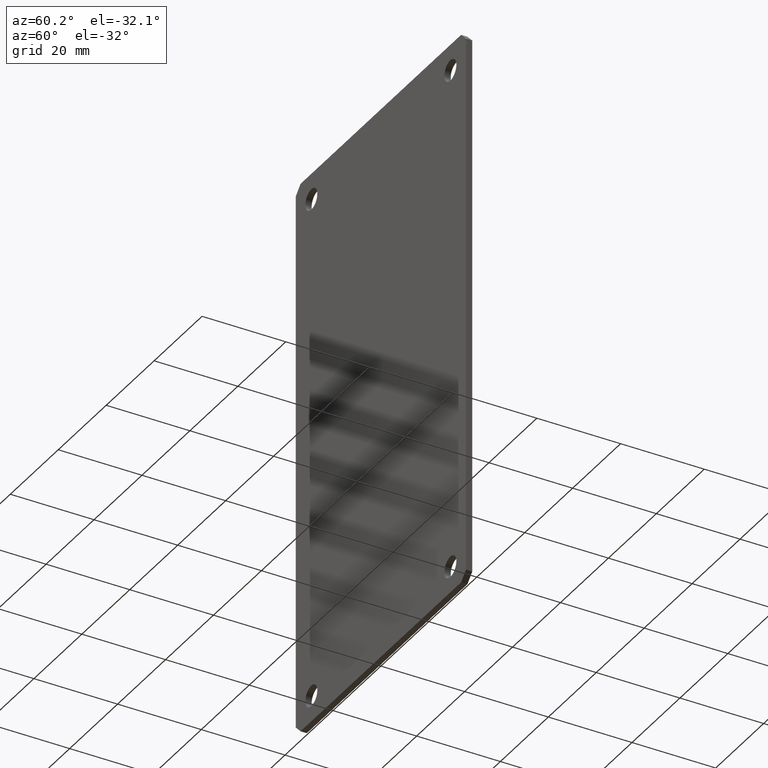
[diagram: clean part render]
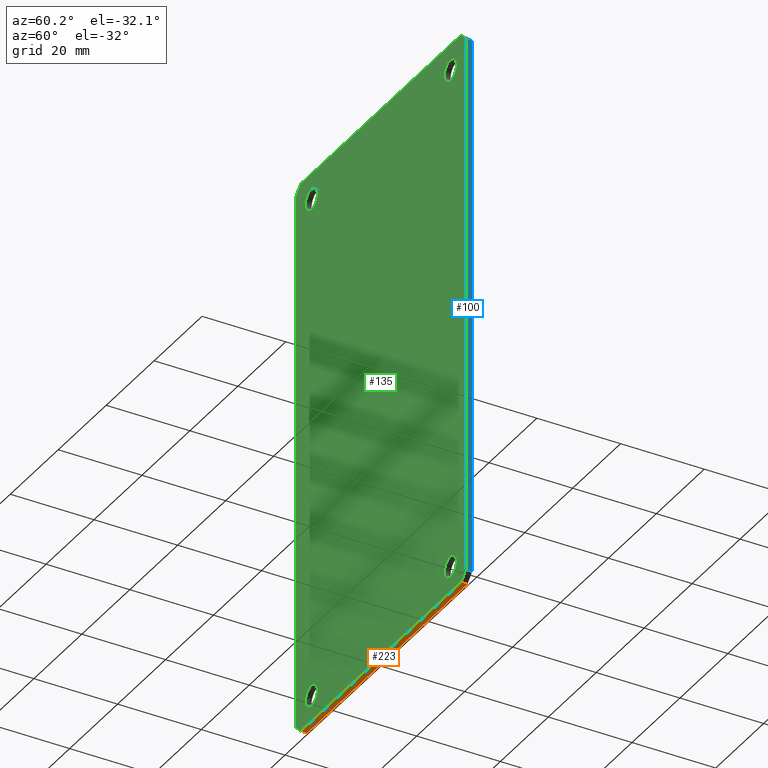
[diagram: same view with three faces highlighted in distinct colors, each labeled with its STEP entity id]
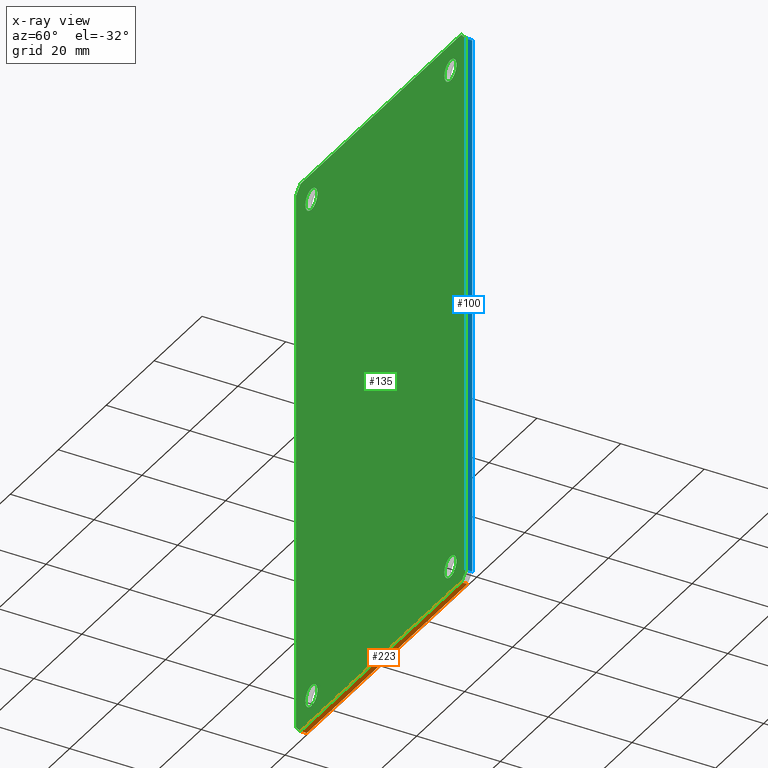
[diagram: x-ray of the same camera — body ghosted, the three highlighted faces saturated]
A machine part, auxiliary view with three faces highlighted in distinct colors.
The next image is the same camera in x-ray (body ghosted, the three faces saturated) — at least one of them is partly hidden behind the body in this view.
Their STEP definitions:

[orange] entity #223 — the highlighted planar face has unit normal (0, 0, 1).
#6 = VERTEX_POINT ( 'NONE', #230 ) ;
#52 = EDGE_CURVE ( 'NONE', #6, #112, #328, .T. ) ;
#71 = EDGE_CURVE ( 'NONE', #112, #199, #396, .T. ) ;
#112 = VERTEX_POINT ( 'NONE', #425 ) ;
#169 = EDGE_CURVE ( 'NONE', #6, #173, #570, .T. ) ;
#173 = VERTEX_POINT ( 'NONE', #566 ) ;
#180 = EDGE_CURVE ( 'NONE', #173, #199, #556, .T. ) ;
#187 = ORIENTED_EDGE ( 'NONE', *, *, #169, .T. ) ;
#188 = ORIENTED_EDGE ( 'NONE', *, *, #71, .F. ) ;
#199 = VERTEX_POINT ( 'NONE', #542 ) ;
#218 = ORIENTED_EDGE ( 'NONE', *, *, #180, .T. ) ;
#223 = ADVANCED_FACE ( 'NONE', ( #526 ), #522, .F. ) ;
#224 = EDGE_LOOP ( 'NONE', ( #218, #188, #225, #187 ) ) ;
#225 = ORIENTED_EDGE ( 'NONE', *, *, #52, .F. ) ;
#230 = CARTESIAN_POINT ( 'NONE',  ( 33.49999999999999300, 1.500000000000000000, -67.00000000000000000 ) ) ;
#325 = DIRECTION ( 'NONE',  ( -1.000000000000000000, -0.0000000000000000000, -0.0000000000000000000 ) ) ;
#326 = VECTOR ( 'NONE', #325, 1000.000000000000000 ) ;
#327 = CARTESIAN_POINT ( 'NONE',  ( -33.49999999999999300, 1.500000000000000000, -67.00000000000000000 ) ) ;
#328 = LINE ( 'NONE', #327, #326 ) ;
#369 = VECTOR ( 'NONE', #394, 1000.000000000000000 ) ;
#374 = CARTESIAN_POINT ( 'NONE',  ( -33.49999999999999300, 1.500000000000000000, -67.00000000000000000 ) ) ;
#394 = DIRECTION ( 'NONE',  ( -0.0000000000000000000, -1.000000000000000000, -0.0000000000000000000 ) ) ;
#396 = LINE ( 'NONE', #374, #369 ) ;
#425 = CARTESIAN_POINT ( 'NONE',  ( -33.49999999999999300, 1.500000000000000000, -67.00000000000000000 ) ) ;
#517 = DIRECTION ( 'NONE',  ( 1.000000000000000000, 0.0000000000000000000, -0.0000000000000000000 ) ) ;
#518 = DIRECTION ( 'NONE',  ( 0.0000000000000000000, 0.0000000000000000000, 1.000000000000000000 ) ) ;
#519 = CARTESIAN_POINT ( 'NONE',  ( -33.49999999999999300, 1.500000000000000000, -67.00000000000000000 ) ) ;
#521 = AXIS2_PLACEMENT_3D ( 'NONE', #519, #518, #517 ) ;
#522 = PLANE ( 'NONE',  #521 ) ;
#526 = FACE_OUTER_BOUND ( 'NONE', #224, .T. ) ;
#542 = CARTESIAN_POINT ( 'NONE',  ( -33.49999999999999300, 0.0000000000000000000, -67.00000000000000000 ) ) ;
#553 = DIRECTION ( 'NONE',  ( -1.000000000000000000, -0.0000000000000000000, -0.0000000000000000000 ) ) ;
#554 = VECTOR ( 'NONE', #553, 1000.000000000000000 ) ;
#555 = CARTESIAN_POINT ( 'NONE',  ( -33.49999999999999300, 0.0000000000000000000, -67.00000000000000000 ) ) ;
#556 = LINE ( 'NONE', #555, #554 ) ;
#566 = CARTESIAN_POINT ( 'NONE',  ( 33.49999999999999300, 0.0000000000000000000, -67.00000000000000000 ) ) ;
#567 = DIRECTION ( 'NONE',  ( -0.0000000000000000000, -1.000000000000000000, -0.0000000000000000000 ) ) ;
#568 = VECTOR ( 'NONE', #567, 1000.000000000000000 ) ;
#569 = CARTESIAN_POINT ( 'NONE',  ( 33.49999999999999300, 1.500000000000000000, -67.00000000000000000 ) ) ;
#570 = LINE ( 'NONE', #569, #568 ) ;

[blue] entity #100 — the highlighted planar face has unit normal (-1, 0, 0).
#2 = VERTEX_POINT ( 'NONE', #242 ) ;
#3 = EDGE_CURVE ( 'NONE', #4, #2, #236, .T. ) ;
#4 = VERTEX_POINT ( 'NONE', #232 ) ;
#97 = EDGE_CURVE ( 'NONE', #125, #4, #403, .T. ) ;
#100 = ADVANCED_FACE ( 'NONE', ( #361 ), #399, .F. ) ;
#101 = EDGE_LOOP ( 'NONE', ( #102, #103, #105, #181 ) ) ;
#102 = ORIENTED_EDGE ( 'NONE', *, *, #3, .T. ) ;
#103 = ORIENTED_EDGE ( 'NONE', *, *, #104, .F. ) ;
#104 = EDGE_CURVE ( 'NONE', #128, #2, #358, .T. ) ;
#105 = ORIENTED_EDGE ( 'NONE', *, *, #127, .F. ) ;
#125 = VERTEX_POINT ( 'NONE', #384 ) ;
#127 = EDGE_CURVE ( 'NONE', #125, #128, #383, .T. ) ;
#128 = VERTEX_POINT ( 'NONE', #436 ) ;
#181 = ORIENTED_EDGE ( 'NONE', *, *, #97, .T. ) ;
#232 = CARTESIAN_POINT ( 'NONE',  ( 35.49999999999999300, 0.0000000000000000000, 65.00000000000001400 ) ) ;
#233 = DIRECTION ( 'NONE',  ( 0.0000000000000000000, 0.0000000000000000000, -1.000000000000000000 ) ) ;
#234 = VECTOR ( 'NONE', #233, 1000.000000000000000 ) ;
#235 = CARTESIAN_POINT ( 'NONE',  ( 35.49999999999999300, 0.0000000000000000000, 65.00000000000001400 ) ) ;
#236 = LINE ( 'NONE', #235, #234 ) ;
#242 = CARTESIAN_POINT ( 'NONE',  ( 35.49999999999999300, 0.0000000000000000000, -65.00000000000001400 ) ) ;
#356 = DIRECTION ( 'NONE',  ( 0.0000000000000000000, 0.0000000000000000000, 1.000000000000000000 ) ) ;
#357 = DIRECTION ( 'NONE',  ( -1.000000000000000000, 0.0000000000000000000, 0.0000000000000000000 ) ) ;
#358 = LINE ( 'NONE', #368, #367 ) ;
#359 = CARTESIAN_POINT ( 'NONE',  ( 35.49999999999999300, 1.500000000000000000, 65.00000000000001400 ) ) ;
#360 = AXIS2_PLACEMENT_3D ( 'NONE', #359, #357, #356 ) ;
#361 = FACE_OUTER_BOUND ( 'NONE', #101, .T. ) ;
#366 = DIRECTION ( 'NONE',  ( -0.0000000000000000000, -1.000000000000000000, -0.0000000000000000000 ) ) ;
#367 = VECTOR ( 'NONE', #366, 1000.000000000000000 ) ;
#368 = CARTESIAN_POINT ( 'NONE',  ( 35.49999999999999300, 1.500000000000000000, -65.00000000000001400 ) ) ;
#380 = DIRECTION ( 'NONE',  ( 0.0000000000000000000, 0.0000000000000000000, -1.000000000000000000 ) ) ;
#381 = VECTOR ( 'NONE', #380, 1000.000000000000000 ) ;
#382 = CARTESIAN_POINT ( 'NONE',  ( 35.49999999999999300, 1.500000000000000000, 65.00000000000001400 ) ) ;
#383 = LINE ( 'NONE', #382, #381 ) ;
#384 = CARTESIAN_POINT ( 'NONE',  ( 35.49999999999999300, 1.500000000000000000, 65.00000000000001400 ) ) ;
#399 = PLANE ( 'NONE',  #360 ) ;
#400 = DIRECTION ( 'NONE',  ( -0.0000000000000000000, -1.000000000000000000, -0.0000000000000000000 ) ) ;
#401 = VECTOR ( 'NONE', #400, 1000.000000000000000 ) ;
#402 = CARTESIAN_POINT ( 'NONE',  ( 35.49999999999999300, 1.500000000000000000, 65.00000000000001400 ) ) ;
#403 = LINE ( 'NONE', #402, #401 ) ;
#436 = CARTESIAN_POINT ( 'NONE',  ( 35.49999999999999300, 1.500000000000000000, -65.00000000000001400 ) ) ;

[green] entity #135 — the highlighted planar face has unit normal (0, 1, 0).
#1 = ORIENTED_EDGE ( 'NONE', *, *, #3, .F. ) ;
#2 = VERTEX_POINT ( 'NONE', #242 ) ;
#3 = EDGE_CURVE ( 'NONE', #4, #2, #236, .T. ) ;
#4 = VERTEX_POINT ( 'NONE', #232 ) ;
#5 = VERTEX_POINT ( 'NONE', #231 ) ;
#12 = VERTEX_POINT ( 'NONE', #213 ) ;
#18 = VERTEX_POINT ( 'NONE', #306 ) ;
#19 = EDGE_CURVE ( 'NONE', #155, #158, #294, .T. ) ;
#20 = EDGE_CURVE ( 'NONE', #27, #66, #303, .T. ) ;
#24 = EDGE_CURVE ( 'NONE', #25, #18, #289, .T. ) ;
#25 = VERTEX_POINT ( 'NONE', #291 ) ;
#27 = VERTEX_POINT ( 'NONE', #290 ) ;
#42 = ORIENTED_EDGE ( 'NONE', *, *, #43, .F. ) ;
#43 = EDGE_CURVE ( 'NONE', #44, #4, #322, .T. ) ;
#44 = VERTEX_POINT ( 'NONE', #318 ) ;
#45 = ORIENTED_EDGE ( 'NONE', *, *, #46, .F. ) ;
#46 = EDGE_CURVE ( 'NONE', #47, #44, #317, .T. ) ;
#47 = VERTEX_POINT ( 'NONE', #313 ) ;
#48 = ORIENTED_EDGE ( 'NONE', *, *, #49, .F. ) ;
#49 = EDGE_CURVE ( 'NONE', #50, #47, #312, .T. ) ;
#50 = VERTEX_POINT ( 'NONE', #329 ) ;
#51 = ORIENTED_EDGE ( 'NONE', *, *, #140, .F. ) ;
#53 = EDGE_LOOP ( 'NONE', ( #56, #57 ) ) ;
#54 = ORIENTED_EDGE ( 'NONE', *, *, #55, .T. ) ;
#55 = EDGE_CURVE ( 'NONE', #66, #27, #270, .T. ) ;
#56 = ORIENTED_EDGE ( 'NONE', *, *, #19, .T. ) ;
#57 = ORIENTED_EDGE ( 'NONE', *, *, #58, .T. ) ;
#58 = EDGE_CURVE ( 'NONE', #158, #155, #265, .T. ) ;
#66 = VERTEX_POINT ( 'NONE', #256 ) ;
#135 = ADVANCED_FACE ( 'NONE', ( #460, #459, #458, #457, #456 ), #455, .F. ) ;
#136 = EDGE_LOOP ( 'NONE', ( #137, #138 ) ) ;
#137 = ORIENTED_EDGE ( 'NONE', *, *, #157, .T. ) ;
#138 = ORIENTED_EDGE ( 'NONE', *, *, #139, .T. ) ;
#139 = EDGE_CURVE ( 'NONE', #144, #12, #450, .T. ) ;
#140 = EDGE_CURVE ( 'NONE', #5, #50, #595, .T. ) ;
#141 = EDGE_LOOP ( 'NONE', ( #142, #54 ) ) ;
#142 = ORIENTED_EDGE ( 'NONE', *, *, #20, .T. ) ;
#144 = VERTEX_POINT ( 'NONE', #538 ) ;
#155 = VERTEX_POINT ( 'NONE', #571 ) ;
#157 = EDGE_CURVE ( 'NONE', #12, #144, #510, .T. ) ;
#158 = VERTEX_POINT ( 'NONE', #505 ) ;
#172 = ORIENTED_EDGE ( 'NONE', *, *, #180, .F. ) ;
#173 = VERTEX_POINT ( 'NONE', #566 ) ;
#178 = ORIENTED_EDGE ( 'NONE', *, *, #179, .F. ) ;
#179 = EDGE_CURVE ( 'NONE', #2, #173, #560, .T. ) ;
#180 = EDGE_CURVE ( 'NONE', #173, #199, #556, .T. ) ;
#184 = EDGE_LOOP ( 'NONE', ( #189, #172, #178, #1, #42, #45, #48, #51 ) ) ;
#185 = ORIENTED_EDGE ( 'NONE', *, *, #24, .T. ) ;
#186 = EDGE_CURVE ( 'NONE', #199, #5, #551, .T. ) ;
#189 = ORIENTED_EDGE ( 'NONE', *, *, #186, .F. ) ;
#198 = EDGE_LOOP ( 'NONE', ( #185, #200 ) ) ;
#199 = VERTEX_POINT ( 'NONE', #542 ) ;
#200 = ORIENTED_EDGE ( 'NONE', *, *, #201, .T. ) ;
#201 = EDGE_CURVE ( 'NONE', #18, #25, #541, .T. ) ;
#213 = CARTESIAN_POINT ( 'NONE',  ( 29.00000000000000000, 0.0000000000000000000, 58.25000000000000000 ) ) ;
#231 = CARTESIAN_POINT ( 'NONE',  ( -35.49999999999999300, 0.0000000000000000000, -65.00000000000001400 ) ) ;
#232 = CARTESIAN_POINT ( 'NONE',  ( 35.49999999999999300, 0.0000000000000000000, 65.00000000000001400 ) ) ;
#233 = DIRECTION ( 'NONE',  ( 0.0000000000000000000, 0.0000000000000000000, -1.000000000000000000 ) ) ;
#234 = VECTOR ( 'NONE', #233, 1000.000000000000000 ) ;
#235 = CARTESIAN_POINT ( 'NONE',  ( 35.49999999999999300, 0.0000000000000000000, 65.00000000000001400 ) ) ;
#236 = LINE ( 'NONE', #235, #234 ) ;
#242 = CARTESIAN_POINT ( 'NONE',  ( 35.49999999999999300, 0.0000000000000000000, -65.00000000000001400 ) ) ;
#248 = CARTESIAN_POINT ( 'NONE',  ( -29.00000000000000000, 0.0000000000000000000, -60.74999999999999300 ) ) ;
#256 = CARTESIAN_POINT ( 'NONE',  ( 29.00000000000000000, 0.0000000000000000000, -58.24999999999998600 ) ) ;
#265 = CIRCLE ( 'NONE', #278, 2.500000000000002200 ) ;
#266 = DIRECTION ( 'NONE',  ( 0.0000000000000000000, 0.0000000000000000000, -1.000000000000000000 ) ) ;
#267 = DIRECTION ( 'NONE',  ( -0.0000000000000000000, 1.000000000000000000, -0.0000000000000000000 ) ) ;
#268 = CARTESIAN_POINT ( 'NONE',  ( 29.00000000000000000, 0.0000000000000000000, -60.74999999999999300 ) ) ;
#269 = AXIS2_PLACEMENT_3D ( 'NONE', #268, #267, #266 ) ;
#270 = CIRCLE ( 'NONE', #269, 2.499999999999995100 ) ;
#271 = CARTESIAN_POINT ( 'NONE',  ( -29.00000000000000000, 0.0000000000000000000, 60.75000000000000700 ) ) ;
#276 = DIRECTION ( 'NONE',  ( 0.0000000000000000000, 0.0000000000000000000, -1.000000000000000000 ) ) ;
#277 = DIRECTION ( 'NONE',  ( -0.0000000000000000000, 1.000000000000000000, -0.0000000000000000000 ) ) ;
#278 = AXIS2_PLACEMENT_3D ( 'NONE', #271, #277, #276 ) ;
#281 = AXIS2_PLACEMENT_3D ( 'NONE', #308, #323, #305 ) ;
#288 = DIRECTION ( 'NONE',  ( -0.0000000000000000000, 1.000000000000000000, -0.0000000000000000000 ) ) ;
#289 = CIRCLE ( 'NONE', #307, 2.500000000000002200 ) ;
#290 = CARTESIAN_POINT ( 'NONE',  ( 29.00000000000000000, 0.0000000000000000000, -63.24999999999998600 ) ) ;
#291 = CARTESIAN_POINT ( 'NONE',  ( -29.00000000000000000, 0.0000000000000000000, -63.24999999999998600 ) ) ;
#292 = DIRECTION ( 'NONE',  ( 0.0000000000000000000, 0.0000000000000000000, -1.000000000000000000 ) ) ;
#294 = CIRCLE ( 'NONE', #333, 2.500000000000002200 ) ;
#298 = CARTESIAN_POINT ( 'NONE',  ( -29.00000000000000000, 0.0000000000000000000, 60.75000000000000700 ) ) ;
#303 = CIRCLE ( 'NONE', #281, 2.499999999999995100 ) ;
#305 = DIRECTION ( 'NONE',  ( 0.0000000000000000000, 0.0000000000000000000, -1.000000000000000000 ) ) ;
#306 = CARTESIAN_POINT ( 'NONE',  ( -29.00000000000000000, 0.0000000000000000000, -58.24999999999998600 ) ) ;
#307 = AXIS2_PLACEMENT_3D ( 'NONE', #248, #311, #310 ) ;
#308 = CARTESIAN_POINT ( 'NONE',  ( 29.00000000000000000, 0.0000000000000000000, -60.74999999999999300 ) ) ;
#310 = DIRECTION ( 'NONE',  ( 0.0000000000000000000, 0.0000000000000000000, 1.000000000000000000 ) ) ;
#311 = DIRECTION ( 'NONE',  ( 0.0000000000000000000, 1.000000000000000000, 0.0000000000000000000 ) ) ;
#312 = LINE ( 'NONE', #332, #331 ) ;
#313 = CARTESIAN_POINT ( 'NONE',  ( -33.49999999999999300, 0.0000000000000000000, 67.00000000000000000 ) ) ;
#314 = DIRECTION ( 'NONE',  ( 1.000000000000000000, 0.0000000000000000000, 0.0000000000000000000 ) ) ;
#315 = VECTOR ( 'NONE', #314, 1000.000000000000000 ) ;
#316 = CARTESIAN_POINT ( 'NONE',  ( -33.49999999999999300, 0.0000000000000000000, 67.00000000000000000 ) ) ;
#317 = LINE ( 'NONE', #316, #315 ) ;
#318 = CARTESIAN_POINT ( 'NONE',  ( 33.49999999999999300, 0.0000000000000000000, 67.00000000000000000 ) ) ;
#319 = DIRECTION ( 'NONE',  ( 0.7071067811865487900, -0.0000000000000000000, -0.7071067811865463500 ) ) ;
#320 = VECTOR ( 'NONE', #319, 1000.000000000000000 ) ;
#321 = CARTESIAN_POINT ( 'NONE',  ( 35.49999999999999300, 0.0000000000000000000, 65.00000000000001400 ) ) ;
#322 = LINE ( 'NONE', #321, #320 ) ;
#323 = DIRECTION ( 'NONE',  ( -0.0000000000000000000, 1.000000000000000000, -0.0000000000000000000 ) ) ;
#329 = CARTESIAN_POINT ( 'NONE',  ( -35.49999999999999300, 0.0000000000000000000, 65.00000000000001400 ) ) ;
#330 = DIRECTION ( 'NONE',  ( 0.7071067811865487900, 0.0000000000000000000, 0.7071067811865463500 ) ) ;
#331 = VECTOR ( 'NONE', #330, 1000.000000000000000 ) ;
#332 = CARTESIAN_POINT ( 'NONE',  ( -35.49999999999999300, 0.0000000000000000000, 65.00000000000001400 ) ) ;
#333 = AXIS2_PLACEMENT_3D ( 'NONE', #298, #288, #292 ) ;
#446 = DIRECTION ( 'NONE',  ( 0.0000000000000000000, 0.0000000000000000000, 1.000000000000000000 ) ) ;
#447 = DIRECTION ( 'NONE',  ( 0.0000000000000000000, 1.000000000000000000, 0.0000000000000000000 ) ) ;
#448 = CARTESIAN_POINT ( 'NONE',  ( 29.00000000000000000, 0.0000000000000000000, 60.75000000000000700 ) ) ;
#449 = AXIS2_PLACEMENT_3D ( 'NONE', #448, #447, #446 ) ;
#450 = CIRCLE ( 'NONE', #449, 2.499999999999995100 ) ;
#451 = DIRECTION ( 'NONE',  ( 0.0000000000000000000, -0.0000000000000000000, 1.000000000000000000 ) ) ;
#452 = DIRECTION ( 'NONE',  ( 0.0000000000000000000, 1.000000000000000000, 0.0000000000000000000 ) ) ;
#453 = CARTESIAN_POINT ( 'NONE',  ( 0.0000000000000000000, 0.0000000000000000000, -100.4999999999998900 ) ) ;
#454 = AXIS2_PLACEMENT_3D ( 'NONE', #453, #452, #451 ) ;
#455 = PLANE ( 'NONE',  #454 ) ;
#456 = FACE_BOUND ( 'NONE', #53, .T. ) ;
#457 = FACE_BOUND ( 'NONE', #141, .T. ) ;
#458 = FACE_OUTER_BOUND ( 'NONE', #184, .T. ) ;
#459 = FACE_BOUND ( 'NONE', #198, .T. ) ;
#460 = FACE_BOUND ( 'NONE', #136, .T. ) ;
#505 = CARTESIAN_POINT ( 'NONE',  ( -29.00000000000000000, 0.0000000000000000000, 63.25000000000000000 ) ) ;
#506 = DIRECTION ( 'NONE',  ( 0.0000000000000000000, 0.0000000000000000000, 1.000000000000000000 ) ) ;
#507 = DIRECTION ( 'NONE',  ( 0.0000000000000000000, 1.000000000000000000, 0.0000000000000000000 ) ) ;
#508 = CARTESIAN_POINT ( 'NONE',  ( 29.00000000000000000, 0.0000000000000000000, 60.75000000000000700 ) ) ;
#509 = AXIS2_PLACEMENT_3D ( 'NONE', #508, #507, #506 ) ;
#510 = CIRCLE ( 'NONE', #509, 2.499999999999995100 ) ;
#530 = DIRECTION ( 'NONE',  ( 0.0000000000000000000, 0.0000000000000000000, 1.000000000000000000 ) ) ;
#531 = DIRECTION ( 'NONE',  ( 0.0000000000000000000, 1.000000000000000000, 0.0000000000000000000 ) ) ;
#532 = CARTESIAN_POINT ( 'NONE',  ( -29.00000000000000000, 0.0000000000000000000, -60.74999999999999300 ) ) ;
#533 = AXIS2_PLACEMENT_3D ( 'NONE', #532, #531, #530 ) ;
#538 = CARTESIAN_POINT ( 'NONE',  ( 29.00000000000000000, 0.0000000000000000000, 63.25000000000000000 ) ) ;
#541 = CIRCLE ( 'NONE', #533, 2.500000000000002200 ) ;
#542 = CARTESIAN_POINT ( 'NONE',  ( -33.49999999999999300, 0.0000000000000000000, -67.00000000000000000 ) ) ;
#543 = DIRECTION ( 'NONE',  ( -0.7071067811865487900, -0.0000000000000000000, 0.7071067811865463500 ) ) ;
#544 = VECTOR ( 'NONE', #543, 1000.000000000000000 ) ;
#545 = CARTESIAN_POINT ( 'NONE',  ( -35.49999999999999300, 0.0000000000000000000, -65.00000000000001400 ) ) ;
#551 = LINE ( 'NONE', #545, #544 ) ;
#553 = DIRECTION ( 'NONE',  ( -1.000000000000000000, -0.0000000000000000000, -0.0000000000000000000 ) ) ;
#554 = VECTOR ( 'NONE', #553, 1000.000000000000000 ) ;
#555 = CARTESIAN_POINT ( 'NONE',  ( -33.49999999999999300, 0.0000000000000000000, -67.00000000000000000 ) ) ;
#556 = LINE ( 'NONE', #555, #554 ) ;
#557 = DIRECTION ( 'NONE',  ( -0.7071067811865487900, 0.0000000000000000000, -0.7071067811865463500 ) ) ;
#558 = VECTOR ( 'NONE', #557, 1000.000000000000000 ) ;
#559 = CARTESIAN_POINT ( 'NONE',  ( 35.49999999999999300, 0.0000000000000000000, -65.00000000000001400 ) ) ;
#560 = LINE ( 'NONE', #559, #558 ) ;
#566 = CARTESIAN_POINT ( 'NONE',  ( 33.49999999999999300, 0.0000000000000000000, -67.00000000000000000 ) ) ;
#571 = CARTESIAN_POINT ( 'NONE',  ( -29.00000000000000000, 0.0000000000000000000, 58.25000000000000000 ) ) ;
#595 = LINE ( 'NONE', #600, #599 ) ;
#598 = DIRECTION ( 'NONE',  ( -0.0000000000000000000, -0.0000000000000000000, 1.000000000000000000 ) ) ;
#599 = VECTOR ( 'NONE', #598, 1000.000000000000000 ) ;
#600 = CARTESIAN_POINT ( 'NONE',  ( -35.49999999999999300, 0.0000000000000000000, 65.00000000000001400 ) ) ;